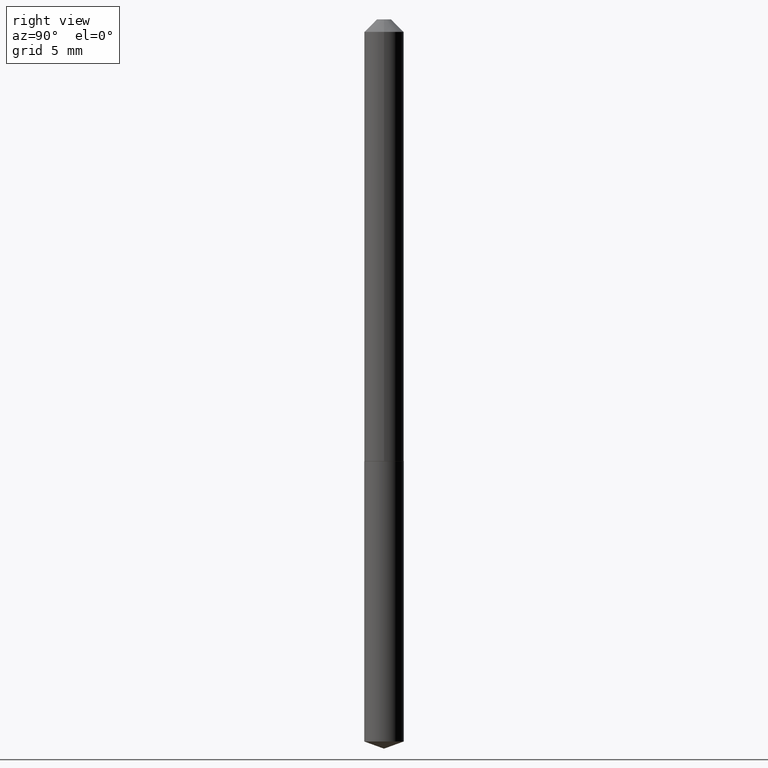
[diagram: clean part render]
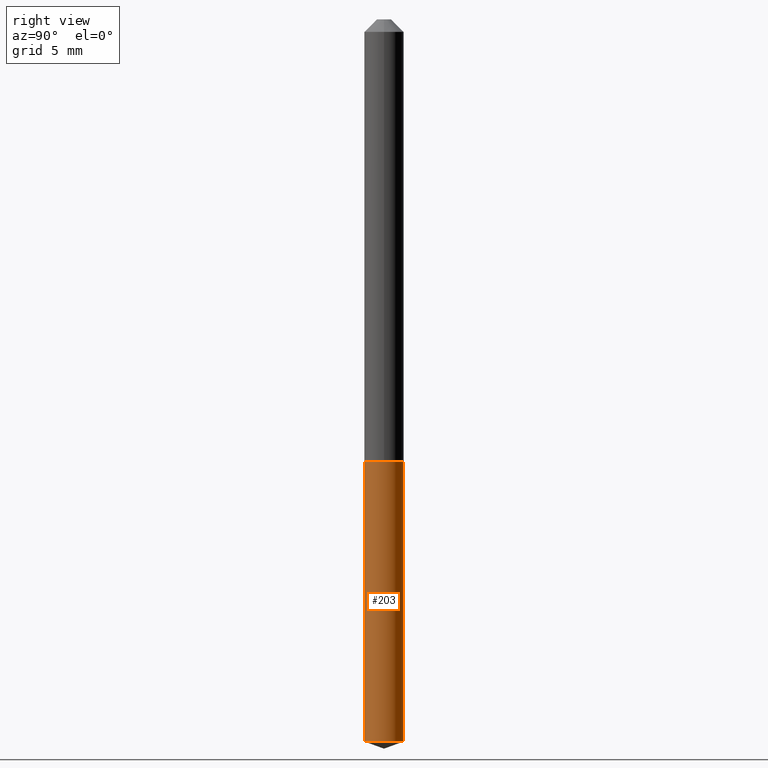
[diagram: same view with one face highlighted and labeled with its STEP entity id]
A machine part, right view. The second image highlights one B-rep face of the part: STEP entity #203.
In plain terms, the highlighted cylindrical surface (edge-blend (fillet) strip) has radius 1.2446 mm, axis along (-0, 0, 1).
Its self-contained STEP definition (entity closure, byte-faithful):
#1 = CIRCLE ( 'NONE', #234, 0.04900000000000000189 ) ;
#11 = ORIENTED_EDGE ( 'NONE', *, *, #184, .F. ) ;
#12 = DIRECTION ( 'NONE',  ( -6.982962677686265922E-15, -1.000000000000000000, 5.575199987069924823E-15 ) ) ;
#31 = CARTESIAN_POINT ( 'NONE',  ( 3.481659405224759258E-16, 0.04899999999999617162, -1.098000000000000309 ) ) ;
#70 = EDGE_CURVE ( 'NONE', #213, #110, #82, .T. ) ;
#76 = CYLINDRICAL_SURFACE ( 'NONE', #215, 0.04900000000000000189 ) ;
#82 = LINE ( 'NONE', #31, #104 ) ;
#100 = CARTESIAN_POINT ( 'NONE',  ( 3.481659405224930342E-16, 0.04899999999999615774, -1.098000000000000309 ) ) ;
#104 = VECTOR ( 'NONE', #363, 39.37007874015748143 ) ;
#110 = VERTEX_POINT ( 'NONE', #100 ) ;
#130 = LINE ( 'NONE', #169, #232 ) ;
#138 = CARTESIAN_POINT ( 'NONE',  ( -3.421651712066001549E-16, -0.04900000000000383216, -1.098000000000000087 ) ) ;
#140 = CARTESIAN_POINT ( 'NONE',  ( 4.388797910619564098E-29, -6.266041653487281956E-15, -1.794665458520956935 ) ) ;
#169 = CARTESIAN_POINT ( 'NONE',  ( -3.421651712066001549E-16, -0.04900000000000383216, -1.098000000000000087 ) ) ;
#181 = DIRECTION ( 'NONE',  ( -6.982962677686265922E-15, -1.000000000000000000, 2.787599993534962411E-15 ) ) ;
#183 = EDGE_LOOP ( 'NONE', ( #380, #222, #240, #11 ) ) ;
#184 = EDGE_CURVE ( 'NONE', #272, #256, #130, .T. ) ;
#197 = CARTESIAN_POINT ( 'NONE',  ( 2.685124749191280284E-29, -3.833646510049774087E-15, -1.098000000000000087 ) ) ;
#203 = ADVANCED_FACE ( 'NONE', ( #344 ), #76, .T. ) ;
#206 = AXIS2_PLACEMENT_3D ( 'NONE', #230, #382, #181 ) ;
#213 = VERTEX_POINT ( 'NONE', #283 ) ;
#215 = AXIS2_PLACEMENT_3D ( 'NONE', #197, #375, #306 ) ;
#222 = ORIENTED_EDGE ( 'NONE', *, *, #70, .T. ) ;
#230 = CARTESIAN_POINT ( 'NONE',  ( 2.685124749191280284E-29, -3.833646510049774087E-15, -1.098000000000000087 ) ) ;
#232 = VECTOR ( 'NONE', #304, 39.37007874015748143 ) ;
#234 = AXIS2_PLACEMENT_3D ( 'NONE', #140, #255, #12 ) ;
#240 = ORIENTED_EDGE ( 'NONE', *, *, #333, .F. ) ;
#255 = DIRECTION ( 'NONE',  ( -2.445468108961849086E-29, 3.491482337306576888E-15, 1.000000000000000000 ) ) ;
#256 = VERTEX_POINT ( 'NONE', #138 ) ;
#272 = VERTEX_POINT ( 'NONE', #377 ) ;
#283 = CARTESIAN_POINT ( 'NONE',  ( 3.481659405224928370E-16, 0.04899999999999372913, -1.794665458520957158 ) ) ;
#296 = CIRCLE ( 'NONE', #206, 0.04900000000000000189 ) ;
#304 = DIRECTION ( 'NONE',  ( -2.445468108961849086E-29, 3.491482337306577282E-15, 1.000000000000000000 ) ) ;
#306 = DIRECTION ( 'NONE',  ( -6.982962677686265922E-15, -1.000000000000000000, 2.787599993534962411E-15 ) ) ;
#313 = EDGE_CURVE ( 'NONE', #272, #213, #1, .T. ) ;
#333 = EDGE_CURVE ( 'NONE', #256, #110, #296, .T. ) ;
#344 = FACE_OUTER_BOUND ( 'NONE', #183, .T. ) ;
#363 = DIRECTION ( 'NONE',  ( -2.445468108961849086E-29, 3.491482337306577282E-15, 1.000000000000000000 ) ) ;
#375 = DIRECTION ( 'NONE',  ( -2.445468108961849086E-29, 3.491482337306576888E-15, 1.000000000000000000 ) ) ;
#377 = CARTESIAN_POINT ( 'NONE',  ( -3.421651712065830464E-16, -0.04900000000000625383, -1.794665458520956491 ) ) ;
#380 = ORIENTED_EDGE ( 'NONE', *, *, #313, .T. ) ;
#382 = DIRECTION ( 'NONE',  ( -2.445468108961849086E-29, 3.491482337306576888E-15, 1.000000000000000000 ) ) ;